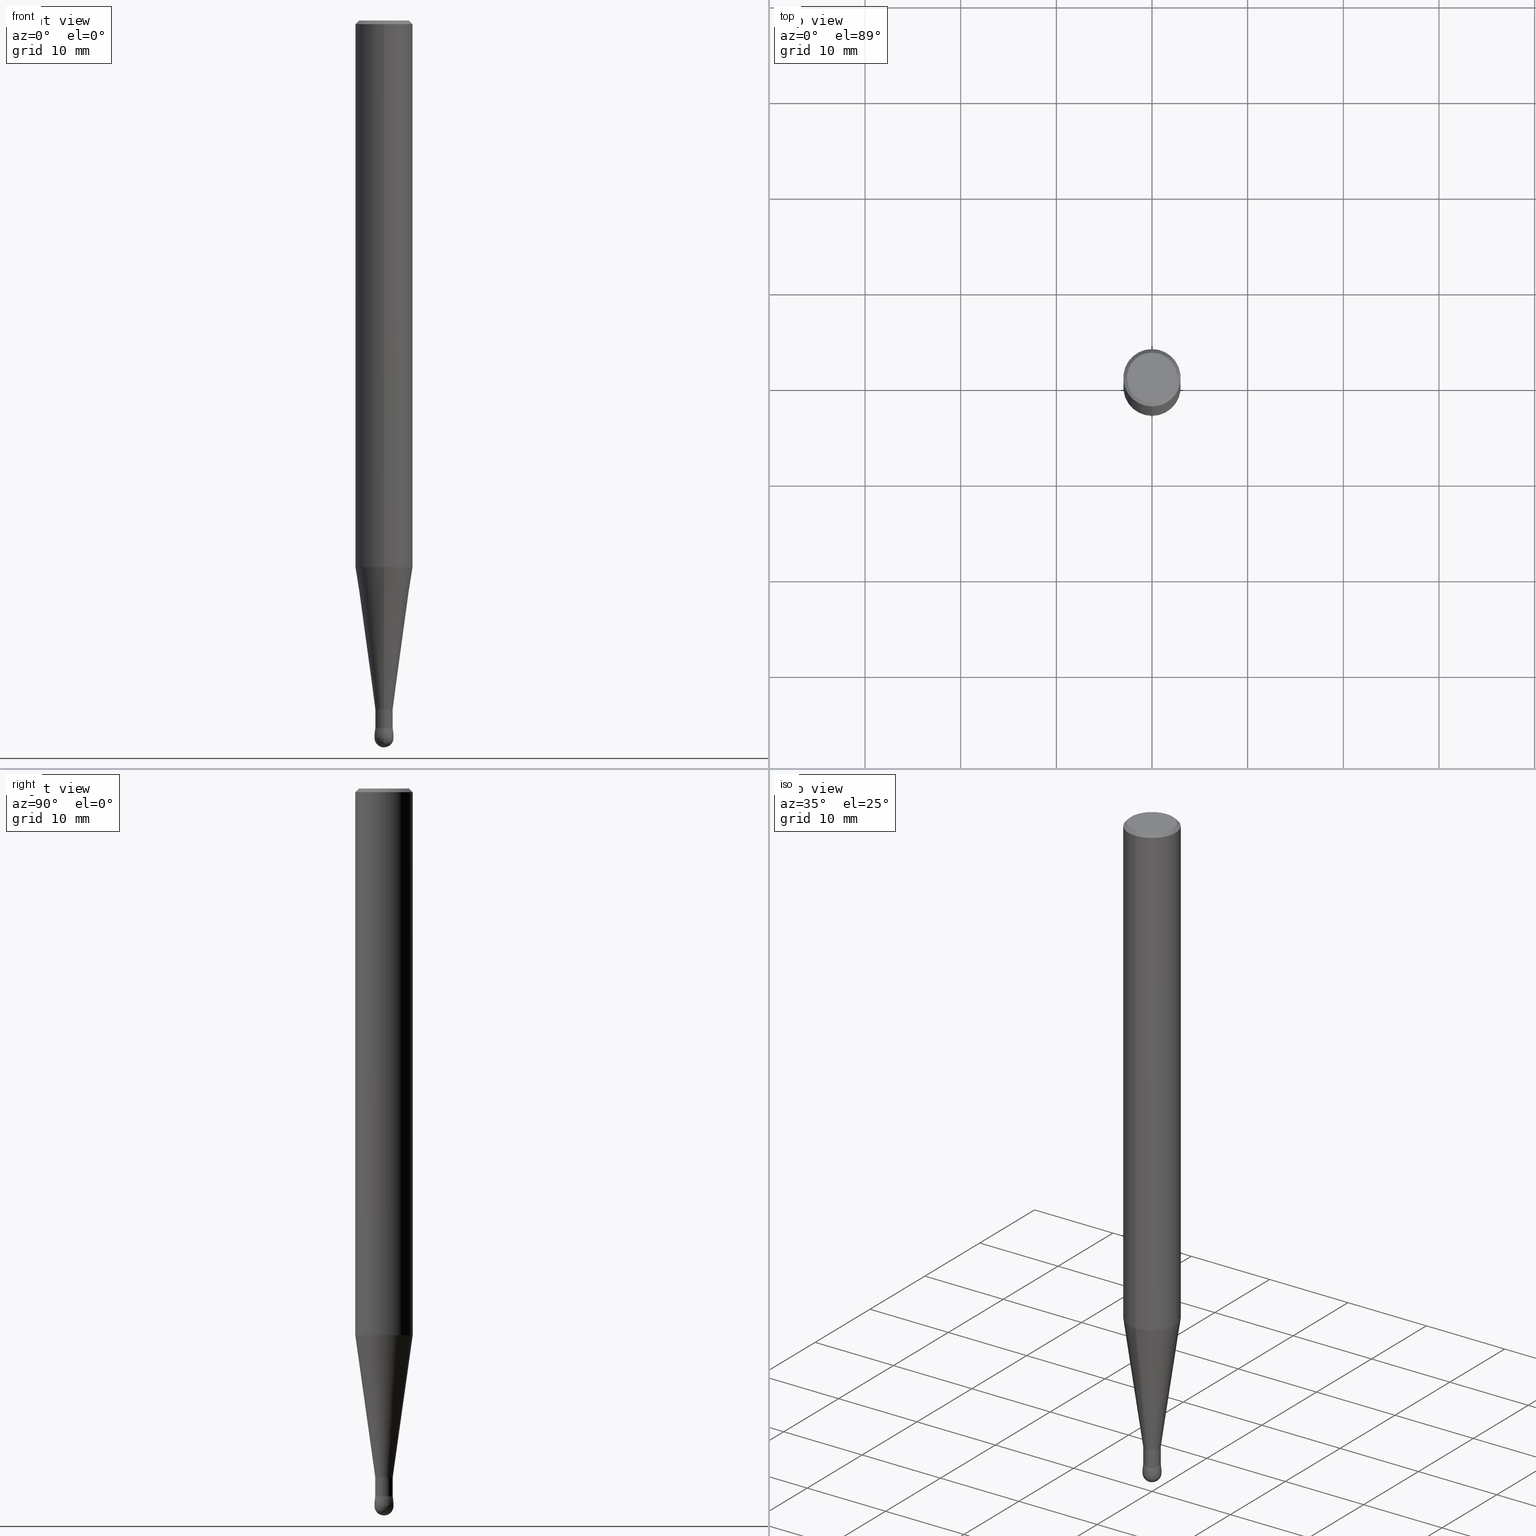
[diagram: canonical four-view strip — front | top / right | iso, engineering-drawing reading convention]
A machine part, canonical four-view strip (front | top / right | iso — engineering-drawing reading convention). The complete STEP part file that produces these views, byte-faithful:
ISO-10303-21;
HEADER;
FILE_DESCRIPTION (( 'STEP AP203' ),
    '1' );
FILE_NAME ('91351.STEP',
    '2024-02-29T19:21:58',
    ( '' ),
    ( '' ),
    'SwSTEP 2.0',
    'SolidWorks 2023',
    '' );
FILE_SCHEMA (( 'CONFIG_CONTROL_DESIGN' ));
ENDSEC;

DATA;
#1 = ADVANCED_FACE ( 'NONE', ( #389 ), #401, .T. ) ;
#2 = CC_DESIGN_SECURITY_CLASSIFICATION ( #487, ( #352 ) ) ;
#3 = ORIENTED_EDGE ( 'NONE', *, *, #247, .T. ) ;
#4 = PERSON_AND_ORGANIZATION ( #181, #492 ) ;
#5 = AXIS2_PLACEMENT_3D ( 'NONE', #192, #258, #79 ) ;
#6 = DATE_AND_TIME ( #345, #59 ) ;
#7 = FACE_OUTER_BOUND ( 'NONE', #119, .T. ) ;
#8 = DIRECTION ( 'NONE',  ( -7.354518733170375608E-29, -3.538557562369774941E-15, 1.000000000000000000 ) ) ;
#9 = LOCAL_TIME ( 14, 21, 58.00000000000000000, #109 ) ;
#10 = DIRECTION ( 'NONE',  ( 2.443734052025374583E-29, -3.493965605535999684E-15, -1.000000000000000000 ) ) ;
#11 = DIRECTION ( 'NONE',  ( 6.982962677686265922E-15, 1.000000000000000000, 0.000000000000000000 ) ) ;
#12 = EDGE_CURVE ( 'NONE', #374, #477, #126, .T. ) ;
#13 = VERTEX_POINT ( 'NONE', #237 ) ;
#15 = CARTESIAN_POINT ( 'NONE',  ( 2.557953848737091158E-16, 0.03599999999999062977, -2.834600000000000009 ) ) ;
#14 = DIRECTION ( 'NONE',  ( 2.443734052025374863E-29, -3.493965605536000078E-15, -1.000000000000000000 ) ) ;
#16 = CYLINDRICAL_SURFACE ( 'NONE', #232, 0.03600000000000054545 ) ;
#17 = ORIENTED_EDGE ( 'NONE', *, *, #262, .F. ) ;
#18 = ORIENTED_EDGE ( 'NONE', *, *, #342, .F. ) ;
#19 = AXIS2_PLACEMENT_3D ( 'NONE', #128, #290, #411 ) ;
#20 = VERTEX_POINT ( 'NONE', #432 ) ;
#21 = ORIENTED_EDGE ( 'NONE', *, *, #188, .T. ) ;
#22 = EDGE_CURVE ( 'NONE', #141, #244, #107, .T. ) ;
#23 = ORIENTED_EDGE ( 'NONE', *, *, #12, .F. ) ;
#24 = VECTOR ( 'NONE', #14, 39.37007874015748143 ) ;
#25 = ADVANCED_BREP_SHAPE_REPRESENTATION ( '91351', ( #286, #459, #5 ), #182 ) ;
#26 = AXIS2_PLACEMENT_3D ( 'NONE', #425, #346, #225 ) ;
#27 = CARTESIAN_POINT ( 'NONE',  ( 7.199434520694515404E-16, 0.1030999999999996503, -3.602278539307603570E-16 ) ) ;
#28 = DIRECTION ( 'NONE',  ( -1.000000000000000000, 6.982962677686265133E-15, -4.883557194083112901E-29 ) ) ;
#29 = ORIENTED_EDGE ( 'NONE', *, *, #180, .F. ) ;
#30 = AXIS2_PLACEMENT_3D ( 'NONE', #70, #332, #490 ) ;
#31 = CARTESIAN_POINT ( 'NONE',  ( 7.119574787170725956E-29, -1.017931939516858039E-14, -2.913399999999999768 ) ) ;
#32 = PRODUCT ( '91351', '91351', '', ( #462 ) ) ;
#33 = VERTEX_POINT ( 'NONE', #228 ) ;
#34 = APPROVAL_DATE_TIME ( #6, #306 ) ;
#35 = AXIS2_PLACEMENT_3D ( 'NONE', #359, #197, #162 ) ;
#36 = CONICAL_SURFACE ( 'NONE', #19, 0.1180999999999996358, 0.7853981633974579379 ) ;
#37 = ADVANCED_FACE ( 'NONE', ( #112 ), #41, .T. ) ;
#38 = DIRECTION ( 'NONE',  ( 6.982962677686264344E-15, 1.000000000000000000, 0.000000000000000000 ) ) ;
#39 = PERSON_AND_ORGANIZATION_ROLE ( 'design_owner' ) ;
#40 =( NAMED_UNIT ( * ) PLANE_ANGLE_UNIT ( ) SI_UNIT ( $, .RADIAN. ) );
#41 = CYLINDRICAL_SURFACE ( 'NONE', #251, 0.1180999999999996358 ) ;
#42 = APPROVAL_STATUS ( 'not_yet_approved' ) ;
#43 = FACE_OUTER_BOUND ( 'NONE', #285, .T. ) ;
#44 = DIRECTION ( 'NONE',  ( 6.982962677686267499E-15, 1.000000000000000000, 0.000000000000000000 ) ) ;
#45 = DIRECTION ( 'NONE',  ( -4.937700262182990032E-15, -0.7071067811891861288, 0.7071067811839089057 ) ) ;
#46 = EDGE_CURVE ( 'NONE', #369, #53, #75, .T. ) ;
#47 = CARTESIAN_POINT ( 'NONE',  ( 3.665601078037989708E-31, -5.240948408303895322E-17, -0.01499999999999970281 ) ) ;
#48 = DIRECTION ( 'NONE',  ( 6.982962677686265922E-15, 1.000000000000000000, 3.538557562369774941E-15 ) ) ;
#49 = FACE_OUTER_BOUND ( 'NONE', #322, .T. ) ;
#50 = DIRECTION ( 'NONE',  ( 6.982962677686265922E-15, 1.000000000000000000, -4.626330217890383536E-15 ) ) ;
#51 = AXIS2_PLACEMENT_3D ( 'NONE', #393, #8, #160 ) ;
#52 = EDGE_LOOP ( 'NONE', ( #23, #243, #366, #165 ) ) ;
#53 = VERTEX_POINT ( 'NONE', #259 ) ;
#54 = DIRECTION ( 'NONE',  ( 2.443734052025374583E-29, -3.493965605535999684E-15, -1.000000000000000000 ) ) ;
#55 = DIRECTION ( 'NONE',  ( -1.000000000000000000, 6.982962677686265922E-15, -4.883557194083112340E-29 ) ) ;
#56 = ORIENTED_EDGE ( 'NONE', *, *, #171, .T. ) ;
#57 = EDGE_CURVE ( 'NONE', #477, #102, #420, .T. ) ;
#58 = DIRECTION ( 'NONE',  ( -7.354518733170375608E-29, -3.538557562369774941E-15, 1.000000000000000000 ) ) ;
#59 = LOCAL_TIME ( 14, 21, 58.00000000000000000, #388 ) ;
#60 = DIRECTION ( 'NONE',  ( -6.982962677686266711E-15, -1.000000000000000000, 0.000000000000000000 ) ) ;
#61 = FACE_OUTER_BOUND ( 'NONE', #275, .T. ) ;
#62 = ORIENTED_EDGE ( 'NONE', *, *, #185, .T. ) ;
#63 = CIRCLE ( 'NONE', #260, 0.1180999999999996358 ) ;
#64 = AXIS2_PLACEMENT_3D ( 'NONE', #118, #233, #44 ) ;
#65 = FACE_OUTER_BOUND ( 'NONE', #137, .T. ) ;
#66 = VECTOR ( 'NONE', #392, 39.37007874015748143 ) ;
#67 = DIRECTION ( 'NONE',  ( -6.982962677686265922E-15, -1.000000000000000000, 3.493965605536000078E-15 ) ) ;
#68 = ORIENTED_EDGE ( 'NONE', *, *, #12, .T. ) ;
#69 = CONICAL_SURFACE ( 'NONE', #234, 0.03590000000000054259, 0.7853981634011832913 ) ;
#70 = CARTESIAN_POINT ( 'NONE',  ( 6.927008543871126381E-29, -9.903994905452345599E-15, -2.834600000000000009 ) ) ;
#71 = AXIS2_PLACEMENT_3D ( 'NONE', #47, #355, #312 ) ;
#72 = ADVANCED_FACE ( 'NONE', ( #266 ), #385, .T. ) ;
#73 = CALENDAR_DATE ( 2024, 29, 2 ) ;
#74 = CONICAL_SURFACE ( 'NONE', #253, 0.03590000000000054259, 0.7853981634011832913 ) ;
#75 = CIRCLE ( 'NONE', #335, 0.03935000000000010711 ) ;
#76 = CARTESIAN_POINT ( 'NONE',  ( 7.119574787170725956E-29, -1.017931939516858039E-14, -2.913399999999999768 ) ) ;
#77 = PERSON_AND_ORGANIZATION ( #181, #492 ) ;
#78 = VECTOR ( 'NONE', #190, 39.37007874015748854 ) ;
#79 = DIRECTION ( 'NONE',  ( 1.000000000000000000, 0.000000000000000000, 0.000000000000000000 ) ) ;
#80 = CARTESIAN_POINT ( 'NONE',  ( 7.119574787170727077E-29, -1.017931939516857881E-14, -2.913399999999999768 ) ) ;
#81 = LINE ( 'NONE', #195, #292 ) ;
#82 = PERSON_AND_ORGANIZATION_ROLE ( 'creator' ) ;
#83 = CONICAL_SURFACE ( 'NONE', #370, 0.03600000000000053157, 0.1396263401595466414 ) ;
#84 = LINE ( 'NONE', #274, #66 ) ;
#85 = AXIS2_PLACEMENT_3D ( 'NONE', #488, #58, #148 ) ;
#86 = AXIS2_PLACEMENT_3D ( 'NONE', #167, #238, #11 ) ;
#87 = CC_DESIGN_PERSON_AND_ORGANIZATION_ASSIGNMENT ( #468, #110, ( #487 ) ) ;
#88 = CARTESIAN_POINT ( 'NONE',  ( 3.665601078037989708E-31, -5.240948408303895322E-17, -0.01499999999999970281 ) ) ;
#89 = CARTESIAN_POINT ( 'NONE',  ( 7.119574787170725956E-29, -1.017931939516858039E-14, -2.913399999999999768 ) ) ;
#90 = DIRECTION ( 'NONE',  ( -4.851104656541010818E-15, -0.7071067811865567876, -0.7071067811865382469 ) ) ;
#91 = DIRECTION ( 'NONE',  ( -6.982962677686267499E-15, -1.000000000000000000, 0.000000000000000000 ) ) ;
#92 = DIRECTION ( 'NONE',  ( 2.443734052025374583E-29, -3.493965605535999684E-15, -1.000000000000000000 ) ) ;
#93 = ORIENTED_EDGE ( 'NONE', *, *, #489, .T. ) ;
#94 = CARTESIAN_POINT ( 'NONE',  ( 2.747795813670312885E-16, 0.03934999999999033715, -2.952750000000000430 ) ) ;
#95 = ADVANCED_FACE ( 'NONE', ( #7 ), #159, .T. ) ;
#96 = CARTESIAN_POINT ( 'NONE',  ( 2.513866563967806755E-16, 0.03599999999999037303, -2.913300000000000445 ) ) ;
#97 = ORIENTED_EDGE ( 'NONE', *, *, #457, .F. ) ;
#98 = ORIENTED_EDGE ( 'NONE', *, *, #291, .T. ) ;
#99 = EDGE_CURVE ( 'NONE', #317, #53, #283, .T. ) ;
#100 = ORIENTED_EDGE ( 'NONE', *, *, #138, .T. ) ;
#101 = ORIENTED_EDGE ( 'NONE', *, *, #132, .T. ) ;
#102 = VERTEX_POINT ( 'NONE', #407 ) ;
#103 = EDGE_CURVE ( 'NONE', #20, #102, #378, .T. ) ;
#104 = CIRCLE ( 'NONE', #373, 0.1030999999999996503 ) ;
#105 = DIRECTION ( 'NONE',  ( 6.982962677686265922E-15, 1.000000000000000000, -4.626330217890383536E-15 ) ) ;
#106 = ADVANCED_FACE ( 'NONE', ( #61 ), #211, .T. ) ;
#107 = CIRCLE ( 'NONE', #64, 0.03600000000000053157 ) ;
#108 = CIRCLE ( 'NONE', #424, 0.03600000000000055933 ) ;
#109 = COORDINATED_UNIVERSAL_TIME_OFFSET ( 5, 0, .BEHIND. ) ;
#110 = PERSON_AND_ORGANIZATION_ROLE ( 'classification_officer' ) ;
#111 = LOCAL_TIME ( 14, 21, 58.00000000000000000, #152 ) ;
#112 = FACE_OUTER_BOUND ( 'NONE', #408, .T. ) ;
#113 = DIRECTION ( 'NONE',  ( 6.982962677686265922E-15, 1.000000000000000000, -3.487819265831422394E-15 ) ) ;
#114 = EDGE_CURVE ( 'NONE', #374, #323, #104, .T. ) ;
#115 = APPROVAL_STATUS ( 'not_yet_approved' ) ;
#116 =( NAMED_UNIT ( * ) SI_UNIT ( $, .STERADIAN. ) SOLID_ANGLE_UNIT ( ) );
#117 = CIRCLE ( 'NONE', #184, 0.1030999999999996503 ) ;
#118 = CARTESIAN_POINT ( 'NONE',  ( 6.927008543871126381E-29, -9.903994905452345599E-15, -2.834600000000000009 ) ) ;
#119 = EDGE_LOOP ( 'NONE', ( #29, #154 ) ) ;
#120 = PERSON_AND_ORGANIZATION_ROLE ( 'creator' ) ;
#121 = COORDINATED_UNIVERSAL_TIME_OFFSET ( 5, 0, .BEHIND. ) ;
#122 = LOCAL_TIME ( 14, 21, 58.00000000000000000, #121 ) ;
#123 = CC_DESIGN_PERSON_AND_ORGANIZATION_ASSIGNMENT ( #460, #120, ( #352 ) ) ;
#124 = DIRECTION ( 'NONE',  ( -6.982962677686265922E-15, -1.000000000000000000, -3.538557562369774941E-15 ) ) ;
#125 = APPLICATION_CONTEXT ( 'configuration controlled 3d designs of mechanical parts and assemblies' ) ;
#126 = LINE ( 'NONE', #429, #344 ) ;
#127 = CLOSED_SHELL ( 'NONE', ( #191, #440, #413, #220, #362, #377, #294, #268, #72, #95, #466, #37 ) ) ;
#128 = CARTESIAN_POINT ( 'NONE',  ( 3.665601078037989708E-31, -5.240948408303895322E-17, -0.01499999999999970281 ) ) ;
#129 = CARTESIAN_POINT ( 'NONE',  ( 5.474731779032196642E-16, 0.03599999999999062977, -2.834600000000000009 ) ) ;
#130 = EDGE_LOOP ( 'NONE', ( #361, #403, #56, #249 ) ) ;
#131 = ORIENTED_EDGE ( 'NONE', *, *, #300, .T. ) ;
#132 = EDGE_CURVE ( 'NONE', #477, #398, #456, .T. ) ;
#134 = FACE_OUTER_BOUND ( 'NONE', #426, .T. ) ;
#133 = FACE_OUTER_BOUND ( 'NONE', #174, .T. ) ;
#135 = CARTESIAN_POINT ( 'NONE',  ( 7.601567486521388413E-29, -9.764273894940413086E-15, -2.952749999999999986 ) ) ;
#136 = ORIENTED_EDGE ( 'NONE', *, *, #319, .T. ) ;
#137 = EDGE_LOOP ( 'NONE', ( #18, #98, #465, #17 ) ) ;
#138 = EDGE_CURVE ( 'NONE', #102, #20, #433, .T. ) ;
#139 = DIRECTION ( 'NONE',  ( 2.443734052025374583E-29, -3.493965605535999684E-15, -1.000000000000000000 ) ) ;
#140 = AXIS2_PLACEMENT_3D ( 'NONE', #439, #10, #320 ) ;
#141 = VERTEX_POINT ( 'NONE', #474 ) ;
#142 = AXIS2_PLACEMENT_3D ( 'NONE', #240, #304, #50 ) ;
#144 = DIRECTION ( 'NONE',  ( -7.354518733170375608E-29, -3.538557562369774941E-15, 1.000000000000000000 ) ) ;
#143 = DIRECTION ( 'NONE',  ( -2.443734052025374583E-29, 3.493965605535999684E-15, 1.000000000000000000 ) ) ;
#145 = VERTEX_POINT ( 'NONE', #204 ) ;
#146 = EDGE_CURVE ( 'NONE', #369, #317, #360, .T. ) ;
#147 = LOCAL_TIME ( 14, 21, 58.00000000000000000, #464 ) ;
#148 = DIRECTION ( 'NONE',  ( -6.982962677686266711E-15, -1.000000000000000000, 0.000000000000000000 ) ) ;
#149 = AXIS2_PLACEMENT_3D ( 'NONE', #178, #161, #485 ) ;
#150 = CIRCLE ( 'NONE', #478, 0.03590000000000054259 ) ;
#151 = AXIS2_PLACEMENT_3D ( 'NONE', #80, #203, #396 ) ;
#152 = COORDINATED_UNIVERSAL_TIME_OFFSET ( 5, 0, .BEHIND. ) ;
#153 = DIRECTION ( 'NONE',  ( -9.718405697420258456E-16, -0.1391731009600622460, 0.9902680687415706950 ) ) ;
#154 = ORIENTED_EDGE ( 'NONE', *, *, #114, .F. ) ;
#155 = PERSON_AND_ORGANIZATION ( #181, #492 ) ;
#156 = VERTEX_POINT ( 'NONE', #96 ) ;
#157 = CALENDAR_DATE ( 2024, 29, 2 ) ;
#158 = APPROVAL_ROLE ( '' ) ;
#159 = PLANE ( 'NONE',  #340 ) ;
#160 = DIRECTION ( 'NONE',  ( -6.982962677686265922E-15, -1.000000000000000000, -3.538557562369774941E-15 ) ) ;
#161 = DIRECTION ( 'NONE',  ( -7.354518733170375608E-29, -3.538557562369774941E-15, 1.000000000000000000 ) ) ;
#162 = DIRECTION ( 'NONE',  ( 6.982962677686265922E-15, 1.000000000000000000, -4.626330217890383536E-15 ) ) ;
#163 = ORIENTED_EDGE ( 'NONE', *, *, #188, .F. ) ;
#164 = AXIS2_PLACEMENT_3D ( 'NONE', #402, #55, #208 ) ;
#165 = ORIENTED_EDGE ( 'NONE', *, *, #132, .F. ) ;
#166 = SPHERICAL_SURFACE ( 'NONE', #461, 0.03935000000000010711 ) ;
#167 = CARTESIAN_POINT ( 'NONE',  ( 7.119330413765524273E-29, -1.017896999860802951E-14, -2.913300000000000445 ) ) ;
#168 = DIRECTION ( 'NONE',  ( 2.443734052025374583E-29, -3.493965605535999684E-15, -1.000000000000000000 ) ) ;
#169 = ORIENTED_EDGE ( 'NONE', *, *, #451, .T. ) ;
#170 = EDGE_LOOP ( 'NONE', ( #62, #454 ) ) ;
#171 = EDGE_CURVE ( 'NONE', #53, #281, #254, .T. ) ;
#172 = DIRECTION ( 'NONE',  ( 5.024295867806827024E-15, 0.7071067811891909027, 0.7071067811839039097 ) ) ;
#173 = ORIENTED_EDGE ( 'NONE', *, *, #247, .F. ) ;
#174 = EDGE_LOOP ( 'NONE', ( #276, #447, #351, #97 ) ) ;
#175 = CARTESIAN_POINT ( 'NONE',  ( 2.513866563967805769E-16, 0.03599999999999036610, -2.913399999999999768 ) ) ;
#176 = CONICAL_SURFACE ( 'NONE', #229, 0.03600000000000053157, 0.1396263401595466414 ) ;
#177 = ORIENTED_EDGE ( 'NONE', *, *, #368, .T. ) ;
#178 = CARTESIAN_POINT ( 'NONE',  ( 7.119574787170727077E-29, -1.017931939516857881E-14, -2.913399999999999768 ) ) ;
#179 = DIRECTION ( 'NONE',  ( 6.982962677686265133E-15, 1.000000000000000000, 0.000000000000000000 ) ) ;
#180 = EDGE_CURVE ( 'NONE', #323, #374, #117, .T. ) ;
#181 = PERSON ( 'UNSPECIFIED', 'UNSPECIFIED', 'UNSPECIFIED', ('UNSPECIFIED'), ('UNSPECIFIED'), ('UNSPECIFIED') ) ;
#182 =( GEOMETRIC_REPRESENTATION_CONTEXT ( 3 ) GLOBAL_UNCERTAINTY_ASSIGNED_CONTEXT ( ( #416 ) ) GLOBAL_UNIT_ASSIGNED_CONTEXT ( ( #437, #40, #116 ) ) REPRESENTATION_CONTEXT ( 'NONE', 'WORKASPACE' ) );
#183 = CIRCLE ( 'NONE', #324, 0.03590000000000054259 ) ;
#184 = AXIS2_PLACEMENT_3D ( 'NONE', #321, #139, #428 ) ;
#185 = EDGE_CURVE ( 'NONE', #281, #13, #328, .T. ) ;
#186 = CC_DESIGN_APPROVAL ( #354, ( #487 ) ) ;
#187 = ORIENTED_EDGE ( 'NONE', *, *, #368, .F. ) ;
#188 = EDGE_CURVE ( 'NONE', #141, #246, #310, .T. ) ;
#189 = DIRECTION ( 'NONE',  ( -1.000000000000000000, 7.105427357601001070E-15, -4.840222362159564660E-29 ) ) ;
#190 = DIRECTION ( 'NONE',  ( 4.937700262164594585E-15, 0.7071067811865517916, -0.7071067811865430208 ) ) ;
#191 = ADVANCED_FACE ( 'NONE', ( #353 ), #434, .T. ) ;
#192 = CARTESIAN_POINT ( 'NONE',  ( 0.000000000000000000, 0.000000000000000000, 0.000000000000000000 ) ) ;
#193 = VECTOR ( 'NONE', #271, 39.37007874015748143 ) ;
#194 = CARTESIAN_POINT ( 'NONE',  ( -8.102248135367440766E-16, -0.1181000000000098221, -2.913399999999998879 ) ) ;
#195 = CARTESIAN_POINT ( 'NONE',  ( -2.513866563966400610E-16, -0.03600000000001044032, -2.834600000000000009 ) ) ;
#196 = DIRECTION ( 'NONE',  ( 9.888843590037927364E-16, 0.1391731009600691849, 0.9902680687415698069 ) ) ;
#197 = DIRECTION ( 'NONE',  ( 2.443734052025374583E-29, -3.493965605535999684E-15, -1.000000000000000000 ) ) ;
#198 = CC_DESIGN_APPROVAL ( #213, ( #352 ) ) ;
#199 = DIRECTION ( 'NONE',  ( 6.982962677686265922E-15, 1.000000000000000000, -4.626330217890383536E-15 ) ) ;
#201 = LINE ( 'NONE', #15, #382 ) ;
#200 = DIRECTION ( 'NONE',  ( -6.982962677686264344E-15, -1.000000000000000000, 0.000000000000000000 ) ) ;
#202 = CIRCLE ( 'NONE', #149, 0.03600000000000053851 ) ;
#203 = DIRECTION ( 'NONE',  ( -7.354518733170375608E-29, -3.538557562369774941E-15, 1.000000000000000000 ) ) ;
#204 = CARTESIAN_POINT ( 'NONE',  ( -2.510375082627538868E-16, -0.03590000000001072195, -2.913399999999999768 ) ) ;
#205 = CC_DESIGN_PERSON_AND_ORGANIZATION_ASSIGNMENT ( #4, #82, ( #343 ) ) ;
#206 = EDGE_LOOP ( 'NONE', ( #486, #441, #315, #100 ) ) ;
#207 = ORIENTED_EDGE ( 'NONE', *, *, #138, .F. ) ;
#208 = DIRECTION ( 'NONE',  ( -6.982962677686266711E-15, -1.000000000000000000, 0.000000000000000000 ) ) ;
#209 = ORIENTED_EDGE ( 'NONE', *, *, #272, .T. ) ;
#210 = ORIENTED_EDGE ( 'NONE', *, *, #185, .F. ) ;
#211 = SPHERICAL_SURFACE ( 'NONE', #311, 0.03935000000000010711 ) ;
#212 = ORIENTED_EDGE ( 'NONE', *, *, #46, .T. ) ;
#213 = APPROVAL ( #42, 'UNSPECIFIED' ) ;
#215 = CARTESIAN_POINT ( 'NONE',  ( -1.374422963500078231E-15, -0.1934328358209081444, -2.952749999999999098 ) ) ;
#214 = LINE ( 'NONE', #175, #24 ) ;
#216 = AXIS2_PLACEMENT_3D ( 'NONE', #326, #144, #60 ) ;
#217 = DIRECTION ( 'NONE',  ( 2.443734052025374583E-29, -3.493965605535999684E-15, -1.000000000000000000 ) ) ;
#218 = CARTESIAN_POINT ( 'NONE',  ( 7.119574787170725956E-29, -1.017931939516858039E-14, -2.913399999999999768 ) ) ;
#219 = APPROVAL_PERSON_ORGANIZATION ( #423, #213, #338 ) ;
#220 = ADVANCED_FACE ( 'NONE', ( #49 ), #16, .T. ) ;
#221 = CALENDAR_DATE ( 2024, 29, 2 ) ;
#222 = DIRECTION ( 'NONE',  ( 2.443734052025374583E-29, -3.493965605535999684E-15, -1.000000000000000000 ) ) ;
#223 = DIRECTION ( 'NONE',  ( 2.443734052025374863E-29, -3.493965605536000078E-15, -1.000000000000000000 ) ) ;
#224 = APPROVAL_DATE_TIME ( #381, #354 ) ;
#225 = DIRECTION ( 'NONE',  ( 6.982962677686265922E-15, 1.000000000000000000, -3.493965605536000078E-15 ) ) ;
#226 = DIRECTION ( 'NONE',  ( 2.443734052025374583E-29, -3.493965605535999684E-15, -1.000000000000000000 ) ) ;
#227 = APPLICATION_PROTOCOL_DEFINITION ( 'international standard', 'config_control_design', 1994, #303 ) ;
#228 = CARTESIAN_POINT ( 'NONE',  ( 2.554401135058310770E-16, 0.03589999999999035629, -2.913399999999999768 ) ) ;
#229 = AXIS2_PLACEMENT_3D ( 'NONE', #410, #245, #287 ) ;
#230 = DATE_AND_TIME ( #157, #9 ) ;
#231 = CARTESIAN_POINT ( 'NONE',  ( -2.469779279197076271E-16, -0.03600000000001072481, -2.913399999999999768 ) ) ;
#232 = AXIS2_PLACEMENT_3D ( 'NONE', #89, #92, #473 ) ;
#233 = DIRECTION ( 'NONE',  ( 2.443734052025374583E-29, -3.493965605535999684E-15, -1.000000000000000000 ) ) ;
#234 = AXIS2_PLACEMENT_3D ( 'NONE', #31, #277, #200 ) ;
#235 = CARTESIAN_POINT ( 'NONE',  ( -2.469779279197095993E-16, -0.03600000000001073869, -2.913300000000000445 ) ) ;
#236 = DIRECTION ( 'NONE',  ( 6.982962677686265922E-15, 1.000000000000000000, -3.493965605535999684E-15 ) ) ;
#237 = CARTESIAN_POINT ( 'NONE',  ( 2.676969756976931810E-16, 0.03599999999999035916, -2.913399999999999768 ) ) ;
#238 = DIRECTION ( 'NONE',  ( 2.443734052025374583E-29, -3.493965605535999684E-15, -1.000000000000000000 ) ) ;
#239 = EDGE_CURVE ( 'NONE', #246, #156, #296, .T. ) ;
#240 = CARTESIAN_POINT ( 'NONE',  ( 5.499447891508879330E-29, -7.862918539128323536E-15, -2.250428145792263912 ) ) ;
#241 = ORIENTED_EDGE ( 'NONE', *, *, #397, .F. ) ;
#242 = CARTESIAN_POINT ( 'NONE',  ( -7.587710785535285755E-16, -0.1030999999999996503, 3.602278539307603570E-16 ) ) ;
#243 = ORIENTED_EDGE ( 'NONE', *, *, #114, .T. ) ;
#244 = VERTEX_POINT ( 'NONE', #129 ) ;
#245 = DIRECTION ( 'NONE',  ( -2.443734052025374583E-29, 3.493965605535999684E-15, 1.000000000000000000 ) ) ;
#246 = VERTEX_POINT ( 'NONE', #235 ) ;
#247 = EDGE_CURVE ( 'NONE', #398, #20, #84, .T. ) ;
#248 = CYLINDRICAL_SURFACE ( 'NONE', #140, 0.03600000000000054545 ) ;
#249 = ORIENTED_EDGE ( 'NONE', *, *, #327, .F. ) ;
#250 = DIRECTION ( 'NONE',  ( 7.354518733170375608E-29, 3.538557562369774941E-15, -1.000000000000000000 ) ) ;
#251 = AXIS2_PLACEMENT_3D ( 'NONE', #76, #387, #199 ) ;
#252 = ADVANCED_FACE ( 'NONE', ( #43 ), #313, .T. ) ;
#253 = AXIS2_PLACEMENT_3D ( 'NONE', #218, #365, #444 ) ;
#254 = CIRCLE ( 'NONE', #164, 0.2327828358208983706 ) ;
#255 = ORIENTED_EDGE ( 'NONE', *, *, #262, .T. ) ;
#256 = DATE_TIME_ROLE ( 'classification_date' ) ;
#257 = CARTESIAN_POINT ( 'NONE',  ( 3.665601078037989708E-31, -5.240948408303895322E-17, -0.01499999999999970281 ) ) ;
#258 = DIRECTION ( 'NONE',  ( 0.000000000000000000, 0.000000000000000000, 1.000000000000000000 ) ) ;
#259 = CARTESIAN_POINT ( 'NONE',  ( -2.795985665215260806E-16, -0.03935000000001014075, -2.952750000000000430 ) ) ;
#260 = AXIS2_PLACEMENT_3D ( 'NONE', #88, #54, #309 ) ;
#261 = CARTESIAN_POINT ( 'NONE',  ( 8.246878922347458960E-16, 0.1180999999999995942, -0.01500000000000011567 ) ) ;
#262 = EDGE_CURVE ( 'NONE', #145, #246, #349, .T. ) ;
#263 = AXIS2_PLACEMENT_3D ( 'NONE', #270, #307, #124 ) ;
#264 = PERSON_AND_ORGANIZATION ( #181, #492 ) ;
#265 = FACE_OUTER_BOUND ( 'NONE', #475, .T. ) ;
#266 = FACE_OUTER_BOUND ( 'NONE', #356, .T. ) ;
#267 = ORIENTED_EDGE ( 'NONE', *, *, #483, .F. ) ;
#268 = ADVANCED_FACE ( 'NONE', ( #265 ), #74, .T. ) ;
#269 = DATE_TIME_ROLE ( 'creation_date' ) ;
#270 = CARTESIAN_POINT ( 'NONE',  ( 7.411621943271856035E-29, -1.003628672390266710E-14, -2.952749999999998654 ) ) ;
#271 = DIRECTION ( 'NONE',  ( 2.443734052025374863E-29, -3.493965605536000078E-15, -1.000000000000000000 ) ) ;
#272 = EDGE_CURVE ( 'NONE', #398, #477, #63, .T. ) ;
#273 = DIRECTION ( 'NONE',  ( 2.443734052025374583E-29, -3.493965605535999684E-15, -1.000000000000000000 ) ) ;
#274 = CARTESIAN_POINT ( 'NONE',  ( 8.246878922348167949E-16, 0.1180999999999894634, -2.913400000000000212 ) ) ;
#275 = EDGE_LOOP ( 'NONE', ( #484, #212, #479 ) ) ;
#276 = ORIENTED_EDGE ( 'NONE', *, *, #451, .F. ) ;
#278 = CARTESIAN_POINT ( 'NONE',  ( 2.550848421379509674E-16, 0.03589999999999035629, -2.913399999999999768 ) ) ;
#277 = DIRECTION ( 'NONE',  ( -2.443734052025374583E-29, 3.493965605535999684E-15, 1.000000000000000000 ) ) ;
#279 = DIRECTION ( 'NONE',  ( 1.000000000000000000, -6.982962677686265922E-15, 4.883557194083112340E-29 ) ) ;
#280 = ORIENTED_EDGE ( 'NONE', *, *, #342, .T. ) ;
#281 = VERTEX_POINT ( 'NONE', #316 ) ;
#282 = EDGE_CURVE ( 'NONE', #244, #20, #201, .T. ) ;
#283 = CIRCLE ( 'NONE', #85, 0.03935000000000038467 ) ;
#284 = ORIENTED_EDGE ( 'NONE', *, *, #171, .F. ) ;
#285 = EDGE_LOOP ( 'NONE', ( #131, #136, #210, #284 ) ) ;
#286 = MANIFOLD_SOLID_BREP ( 'Body-Move/Copy2[1]', #421 ) ;
#287 = DIRECTION ( 'NONE',  ( -6.982962677686267499E-15, -1.000000000000000000, 0.000000000000000000 ) ) ;
#288 = FACE_OUTER_BOUND ( 'NONE', #363, .T. ) ;
#289 = DIRECTION ( 'NONE',  ( 6.982962677686265922E-15, 1.000000000000000000, 0.000000000000000000 ) ) ;
#290 = DIRECTION ( 'NONE',  ( 2.443734052025374583E-29, -3.493965605535999684E-15, -1.000000000000000000 ) ) ;
#291 = EDGE_CURVE ( 'NONE', #33, #156, #476, .T. ) ;
#292 = VECTOR ( 'NONE', #153, 39.37007874015748854 ) ;
#293 = AXIS2_PLACEMENT_3D ( 'NONE', #448, #250, #48 ) ;
#294 = ADVANCED_FACE ( 'NONE', ( #134 ), #248, .T. ) ;
#295 = VECTOR ( 'NONE', #223, 39.37007874015748143 ) ;
#296 = CIRCLE ( 'NONE', #86, 0.03600000000000055933 ) ;
#297 = DATE_AND_TIME ( #73, #111 ) ;
#298 = CONICAL_SURFACE ( 'NONE', #375, 0.1180999999999996358, 0.7853981633974579379 ) ;
#299 = CARTESIAN_POINT ( 'NONE',  ( 7.601567486521388413E-29, -9.764273894940413086E-15, -2.952749999999999986 ) ) ;
#300 = EDGE_CURVE ( 'NONE', #53, #317, #357, .T. ) ;
#301 = ORIENTED_EDGE ( 'NONE', *, *, #22, .T. ) ;
#302 = APPROVAL_DATE_TIME ( #386, #213 ) ;
#303 = APPLICATION_CONTEXT ( 'configuration controlled 3d designs of mechanical parts and assemblies' ) ;
#304 = DIRECTION ( 'NONE',  ( 2.443734052025374583E-29, -3.493965605535999684E-15, -1.000000000000000000 ) ) ;
#305 = CARTESIAN_POINT ( 'NONE',  ( -2.506883601288695368E-16, -0.03590000000001072195, -2.913399999999999768 ) ) ;
#306 = APPROVAL ( #430, 'UNSPECIFIED' ) ;
#307 = DIRECTION ( 'NONE',  ( -7.354518733170375608E-29, -3.538557562369774941E-15, 1.000000000000000000 ) ) ;
#309 = DIRECTION ( 'NONE',  ( 6.982962677686265922E-15, 1.000000000000000000, -3.487819265831422394E-15 ) ) ;
#308 = PLANE ( 'NONE',  #293 ) ;
#310 = LINE ( 'NONE', #231, #193 ) ;
#311 = AXIS2_PLACEMENT_3D ( 'NONE', #372, #28, #179 ) ;
#312 = DIRECTION ( 'NONE',  ( 6.982962677686265922E-15, 1.000000000000000000, -3.487819265831422394E-15 ) ) ;
#313 = TOROIDAL_SURFACE ( 'NONE', #51, -0.1934328358208981247, 0.2327828358208983706 ) ;
#314 = ORIENTED_EDGE ( 'NONE', *, *, #291, .F. ) ;
#315 = ORIENTED_EDGE ( 'NONE', *, *, #457, .T. ) ;
#316 = CARTESIAN_POINT ( 'NONE',  ( -2.513866563966381382E-16, -0.03600000000001071787, -2.913399999999999768 ) ) ;
#317 = VERTEX_POINT ( 'NONE', #94 ) ;
#318 = ORIENTED_EDGE ( 'NONE', *, *, #239, .F. ) ;
#319 = EDGE_CURVE ( 'NONE', #317, #13, #415, .T. ) ;
#320 = DIRECTION ( 'NONE',  ( 6.982962677686265922E-15, 1.000000000000000000, 0.000000000000000000 ) ) ;
#321 = CARTESIAN_POINT ( 'NONE',  ( 0.000000000000000000, 0.000000000000000000, 0.000000000000000000 ) ) ;
#322 = EDGE_LOOP ( 'NONE', ( #169, #21, #241, #187 ) ) ;
#323 = VERTEX_POINT ( 'NONE', #27 ) ;
#324 = AXIS2_PLACEMENT_3D ( 'NONE', #472, #273, #436 ) ;
#326 = CARTESIAN_POINT ( 'NONE',  ( 7.408975099320983747E-29, -1.004007715508932761E-14, -2.952750000000000430 ) ) ;
#325 = CARTESIAN_POINT ( 'NONE',  ( 6.927008543871126381E-29, -9.903994905452345599E-15, -2.834600000000000009 ) ) ;
#327 = EDGE_CURVE ( 'NONE', #13, #281, #202, .T. ) ;
#328 = CIRCLE ( 'NONE', #151, 0.03600000000000053851 ) ;
#329 = ORIENTED_EDGE ( 'NONE', *, *, #57, .F. ) ;
#330 = FACE_OUTER_BOUND ( 'NONE', #206, .T. ) ;
#331 = ORIENTED_EDGE ( 'NONE', *, *, #300, .F. ) ;
#332 = DIRECTION ( 'NONE',  ( 2.443734052025374583E-29, -3.493965605535999684E-15, -1.000000000000000000 ) ) ;
#333 = CARTESIAN_POINT ( 'NONE',  ( 0.000000000000000000, 0.000000000000000000, 0.000000000000000000 ) ) ;
#334 = VECTOR ( 'NONE', #45, 39.37007874015748143 ) ;
#335 = AXIS2_PLACEMENT_3D ( 'NONE', #299, #189, #463 ) ;
#336 = CARTESIAN_POINT ( 'NONE',  ( 7.199434520694515404E-16, 0.1030999999999996503, -3.601004167704755829E-16 ) ) ;
#337 = ORIENTED_EDGE ( 'NONE', *, *, #489, .F. ) ;
#338 = APPROVAL_ROLE ( '' ) ;
#339 = AXIS2_PLACEMENT_3D ( 'NONE', #215, #480, #371 ) ;
#340 = AXIS2_PLACEMENT_3D ( 'NONE', #336, #406, #67 ) ;
#341 = SECURITY_CLASSIFICATION_LEVEL ( 'unclassified' ) ;
#342 = EDGE_CURVE ( 'NONE', #33, #145, #183, .T. ) ;
#343 = PRODUCT_DEFINITION ( 'UNKNOWN', '', #352, #348 ) ;
#344 = VECTOR ( 'NONE', #90, 39.37007874015748143 ) ;
#345 = CALENDAR_DATE ( 2024, 29, 2 ) ;
#346 = DIRECTION ( 'NONE',  ( 2.443734052025374023E-29, -3.493965605536000078E-15, -1.000000000000000000 ) ) ;
#347 = FACE_OUTER_BOUND ( 'NONE', #52, .T. ) ;
#348 = DESIGN_CONTEXT ( 'detailed design', #303, 'design' ) ;
#349 = LINE ( 'NONE', #305, #334 ) ;
#350 = CC_DESIGN_PERSON_AND_ORGANIZATION_ASSIGNMENT ( #155, #494, ( #352 ) ) ;
#351 = ORIENTED_EDGE ( 'NONE', *, *, #103, .T. ) ;
#352 = PRODUCT_DEFINITION_FORMATION_WITH_SPECIFIED_SOURCE ( 'ANY', '', #32, .NOT_KNOWN. ) ;
#353 = FACE_OUTER_BOUND ( 'NONE', #481, .T. ) ;
#354 = APPROVAL ( #115, 'UNSPECIFIED' ) ;
#355 = DIRECTION ( 'NONE',  ( 2.443734052025374583E-29, -3.493965605535999684E-15, -1.000000000000000000 ) ) ;
#356 = EDGE_LOOP ( 'NONE', ( #93, #280 ) ) ;
#357 = CIRCLE ( 'NONE', #216, 0.03935000000000038467 ) ;
#358 = FACE_OUTER_BOUND ( 'NONE', #493, .T. ) ;
#359 = CARTESIAN_POINT ( 'NONE',  ( 7.119574787170725956E-29, -1.017931939516858039E-14, -2.913399999999999768 ) ) ;
#360 = CIRCLE ( 'NONE', #383, 0.03935000000000010711 ) ;
#361 = ORIENTED_EDGE ( 'NONE', *, *, #319, .F. ) ;
#362 = ADVANCED_FACE ( 'NONE', ( #133 ), #176, .T. ) ;
#363 = EDGE_LOOP ( 'NONE', ( #450, #68, #446, #267 ) ) ;
#364 = DIRECTION ( 'NONE',  ( 6.982962677686265133E-15, 1.000000000000000000, 0.000000000000000000 ) ) ;
#365 = DIRECTION ( 'NONE',  ( -2.443734052025374583E-29, 3.493965605535999684E-15, 1.000000000000000000 ) ) ;
#366 = ORIENTED_EDGE ( 'NONE', *, *, #483, .T. ) ;
#367 = ORIENTED_EDGE ( 'NONE', *, *, #57, .T. ) ;
#368 = EDGE_CURVE ( 'NONE', #244, #156, #214, .T. ) ;
#369 = VERTEX_POINT ( 'NONE', #482 ) ;
#370 = AXIS2_PLACEMENT_3D ( 'NONE', #325, #143, #91 ) ;
#371 = DIRECTION ( 'NONE',  ( 7.105427357601001070E-15, 1.000000000000000000, 0.000000000000000000 ) ) ;
#372 = CARTESIAN_POINT ( 'NONE',  ( 7.601567486521388413E-29, -9.764273894940413086E-15, -2.952749999999999986 ) ) ;
#373 = AXIS2_PLACEMENT_3D ( 'NONE', #333, #168, #236 ) ;
#374 = VERTEX_POINT ( 'NONE', #242 ) ;
#375 = AXIS2_PLACEMENT_3D ( 'NONE', #257, #222, #113 ) ;
#376 = CARTESIAN_POINT ( 'NONE',  ( 5.499447891508879330E-29, -7.862918539128323536E-15, -2.250428145792263912 ) ) ;
#377 = ADVANCED_FACE ( 'NONE', ( #330 ), #83, .T. ) ;
#378 = CIRCLE ( 'NONE', #445, 0.1180999999999996358 ) ;
#379 = CC_DESIGN_DATE_AND_TIME_ASSIGNMENT ( #297, #256, ( #487 ) ) ;
#380 = DIMENSIONAL_EXPONENTS ( 1.000000000000000000, 0.000000000000000000, 0.000000000000000000, 0.000000000000000000, 0.000000000000000000, 0.000000000000000000, 0.000000000000000000 ) ;
#381 = DATE_AND_TIME ( #221, #122 ) ;
#382 = VECTOR ( 'NONE', #196, 39.37007874015748143 ) ;
#383 = AXIS2_PLACEMENT_3D ( 'NONE', #135, #279, #469 ) ;
#384 = LINE ( 'NONE', #261, #78 ) ;
#385 = PLANE ( 'NONE',  #26 ) ;
#386 = DATE_AND_TIME ( #467, #147 ) ;
#387 = DIRECTION ( 'NONE',  ( 2.443734052025374583E-29, -3.493965605535999684E-15, -1.000000000000000000 ) ) ;
#388 = COORDINATED_UNIVERSAL_TIME_OFFSET ( 5, 0, .BEHIND. ) ;
#389 = FACE_OUTER_BOUND ( 'NONE', #130, .T. ) ;
#390 = ADVANCED_FACE ( 'NONE', ( #400 ), #308, .F. ) ;
#391 = PERSON_AND_ORGANIZATION ( #181, #492 ) ;
#392 = DIRECTION ( 'NONE',  ( 2.443734052025374863E-29, -3.493965605536000078E-15, -1.000000000000000000 ) ) ;
#393 = CARTESIAN_POINT ( 'NONE',  ( 7.411621943271856035E-29, -1.003628672390266710E-14, -2.952749999999998654 ) ) ;
#394 = APPROVAL_PERSON_ORGANIZATION ( #77, #354, #417 ) ;
#395 = CARTESIAN_POINT ( 'NONE',  ( 7.119330413765524273E-29, -1.017896999860802951E-14, -2.913300000000000445 ) ) ;
#396 = DIRECTION ( 'NONE',  ( -6.982962677686265922E-15, -1.000000000000000000, 0.000000000000000000 ) ) ;
#397 = EDGE_CURVE ( 'NONE', #156, #246, #108, .T. ) ;
#398 = VERTEX_POINT ( 'NONE', #452 ) ;
#399 = ORIENTED_EDGE ( 'NONE', *, *, #103, .F. ) ;
#400 = FACE_OUTER_BOUND ( 'NONE', #170, .T. ) ;
#401 = TOROIDAL_SURFACE ( 'NONE', #263, -0.1934328358208981247, 0.2327828358208983706 ) ;
#402 = CARTESIAN_POINT ( 'NONE',  ( 1.350734273176420597E-15, 0.1934328358208880771, -2.952749999999998209 ) ) ;
#403 = ORIENTED_EDGE ( 'NONE', *, *, #99, .T. ) ;
#404 = CIRCLE ( 'NONE', #30, 0.03600000000000053157 ) ;
#405 =( LENGTH_UNIT ( ) NAMED_UNIT ( * ) SI_UNIT ( $, .METRE. ) );
#406 = DIRECTION ( 'NONE',  ( -2.443734052025374023E-29, 3.493965605536000078E-15, 1.000000000000000000 ) ) ;
#407 = CARTESIAN_POINT ( 'NONE',  ( -8.246878922346906758E-16, -0.1181000000000075323, -2.250428145792263468 ) ) ;
#408 = EDGE_LOOP ( 'NONE', ( #329, #101, #3, #207 ) ) ;
#409 = CC_DESIGN_PERSON_AND_ORGANIZATION_ASSIGNMENT ( #264, #39, ( #32 ) ) ;
#410 = CARTESIAN_POINT ( 'NONE',  ( 6.927008543871126381E-29, -9.903994905452345599E-15, -2.834600000000000009 ) ) ;
#411 = DIRECTION ( 'NONE',  ( 6.982962677686265922E-15, 1.000000000000000000, -3.487819265831422394E-15 ) ) ;
#412 = APPROVAL_PERSON_ORGANIZATION ( #391, #306, #158 ) ;
#413 = ADVANCED_FACE ( 'NONE', ( #65 ), #69, .T. ) ;
#414 = ORIENTED_EDGE ( 'NONE', *, *, #46, .F. ) ;
#415 = CIRCLE ( 'NONE', #339, 0.2327828358208983706 ) ;
#416 = UNCERTAINTY_MEASURE_WITH_UNIT (LENGTH_MEASURE( 1.000000000000000082E-05 ), #437, 'distance_accuracy_value', 'NONE');
#417 = APPROVAL_ROLE ( '' ) ;
#418 = CARTESIAN_POINT ( 'NONE',  ( -8.102248135368149755E-16, -0.1180999999999996913, -0.01499999999999929168 ) ) ;
#419 = SHAPE_DEFINITION_REPRESENTATION ( #458, #25 ) ;
#420 = LINE ( 'NONE', #194, #295 ) ;
#421 = CLOSED_SHELL ( 'NONE', ( #252, #106, #435, #1, #390 ) ) ;
#422 = CARTESIAN_POINT ( 'NONE',  ( 7.119574787170725956E-29, -1.017931939516858039E-14, -2.913399999999999768 ) ) ;
#423 = PERSON_AND_ORGANIZATION ( #181, #492 ) ;
#424 = AXIS2_PLACEMENT_3D ( 'NONE', #395, #217, #289 ) ;
#425 = CARTESIAN_POINT ( 'NONE',  ( 2.506883601290118769E-16, 0.03589999999999035629, -2.913399999999999768 ) ) ;
#426 = EDGE_LOOP ( 'NONE', ( #163, #301, #177, #318 ) ) ;
#427 = APPLICATION_PROTOCOL_DEFINITION ( 'international standard', 'config_control_design', 1994, #125 ) ;
#428 = DIRECTION ( 'NONE',  ( 6.982962677686265922E-15, 1.000000000000000000, -3.493965605535999684E-15 ) ) ;
#429 = CARTESIAN_POINT ( 'NONE',  ( -8.102248135368149755E-16, -0.1180999999999996913, -0.01499999999999929168 ) ) ;
#430 = APPROVAL_STATUS ( 'not_yet_approved' ) ;
#431 = VECTOR ( 'NONE', #172, 39.37007874015748854 ) ;
#432 = CARTESIAN_POINT ( 'NONE',  ( 8.391509709327303605E-16, 0.1180999999999917532, -2.250428145792263912 ) ) ;
#433 = CIRCLE ( 'NONE', #142, 0.1180999999999996358 ) ;
#434 = CYLINDRICAL_SURFACE ( 'NONE', #35, 0.1180999999999996358 ) ;
#435 = ADVANCED_FACE ( 'NONE', ( #358 ), #166, .T. ) ;
#436 = DIRECTION ( 'NONE',  ( 6.982962677686264344E-15, 1.000000000000000000, 0.000000000000000000 ) ) ;
#437 =( CONVERSION_BASED_UNIT ( 'INCH', #470 ) LENGTH_UNIT ( ) NAMED_UNIT ( #380 ) );
#438 = ORIENTED_EDGE ( 'NONE', *, *, #239, .T. ) ;
#439 = CARTESIAN_POINT ( 'NONE',  ( 7.119574787170725956E-29, -1.017931939516858039E-14, -2.913399999999999768 ) ) ;
#440 = ADVANCED_FACE ( 'NONE', ( #288 ), #36, .T. ) ;
#441 = ORIENTED_EDGE ( 'NONE', *, *, #22, .F. ) ;
#442 = ORIENTED_EDGE ( 'NONE', *, *, #146, .T. ) ;
#443 = CARTESIAN_POINT ( 'NONE',  ( 7.601567486521388413E-29, -9.764273894940413086E-15, -2.952749999999999986 ) ) ;
#444 = DIRECTION ( 'NONE',  ( -6.982962677686264344E-15, -1.000000000000000000, 0.000000000000000000 ) ) ;
#445 = AXIS2_PLACEMENT_3D ( 'NONE', #376, #449, #105 ) ;
#446 = ORIENTED_EDGE ( 'NONE', *, *, #272, .F. ) ;
#447 = ORIENTED_EDGE ( 'NONE', *, *, #282, .T. ) ;
#448 = CARTESIAN_POINT ( 'NONE',  ( 7.124628819939776708E-29, -1.017208173258561931E-14, -2.913399999999999768 ) ) ;
#449 = DIRECTION ( 'NONE',  ( 2.443734052025374583E-29, -3.493965605535999684E-15, -1.000000000000000000 ) ) ;
#450 = ORIENTED_EDGE ( 'NONE', *, *, #180, .T. ) ;
#451 = EDGE_CURVE ( 'NONE', #244, #141, #404, .T. ) ;
#452 = CARTESIAN_POINT ( 'NONE',  ( 8.246878922347458960E-16, 0.1180999999999995942, -0.01500000000000011567 ) ) ;
#453 = CC_DESIGN_APPROVAL ( #306, ( #343 ) ) ;
#454 = ORIENTED_EDGE ( 'NONE', *, *, #327, .T. ) ;
#455 = PRODUCT_RELATED_PRODUCT_CATEGORY ( 'detail', '', ( #32 ) ) ;
#456 = CIRCLE ( 'NONE', #71, 0.1180999999999996358 ) ;
#457 = EDGE_CURVE ( 'NONE', #141, #102, #81, .T. ) ;
#458 = PRODUCT_DEFINITION_SHAPE ( 'NONE', 'NONE',  #343 ) ;
#459 = MANIFOLD_SOLID_BREP ( 'Body-Move/Copy2[2]', #127 ) ;
#460 = PERSON_AND_ORGANIZATION ( #181, #492 ) ;
#461 = AXIS2_PLACEMENT_3D ( 'NONE', #443, #471, #364 ) ;
#462 = MECHANICAL_CONTEXT ( 'NONE', #125, 'mechanical' ) ;
#463 = DIRECTION ( 'NONE',  ( -7.105427357600999492E-15, -1.000000000000000000, 0.000000000000000000 ) ) ;
#464 = COORDINATED_UNIVERSAL_TIME_OFFSET ( 5, 0, .BEHIND. ) ;
#465 = ORIENTED_EDGE ( 'NONE', *, *, #397, .T. ) ;
#466 = ADVANCED_FACE ( 'NONE', ( #347 ), #298, .T. ) ;
#467 = CALENDAR_DATE ( 2024, 29, 2 ) ;
#468 = PERSON_AND_ORGANIZATION ( #181, #492 ) ;
#469 = DIRECTION ( 'NONE',  ( 6.982962677686264344E-15, 1.000000000000000000, 0.000000000000000000 ) ) ;
#470 = LENGTH_MEASURE_WITH_UNIT ( LENGTH_MEASURE( 0.02539999999999999897 ), #405 );
#471 = DIRECTION ( 'NONE',  ( -1.000000000000000000, 6.982962677686265133E-15, -4.883557194083112901E-29 ) ) ;
#472 = CARTESIAN_POINT ( 'NONE',  ( 7.119574787170725956E-29, -1.017931939516858039E-14, -2.913399999999999768 ) ) ;
#473 = DIRECTION ( 'NONE',  ( 6.982962677686265922E-15, 1.000000000000000000, 0.000000000000000000 ) ) ;
#474 = CARTESIAN_POINT ( 'NONE',  ( -5.380372743156651958E-16, -0.03600000000001044032, -2.834600000000000009 ) ) ;
#475 = EDGE_LOOP ( 'NONE', ( #314, #337, #255, #438 ) ) ;
#476 = LINE ( 'NONE', #278, #431 ) ;
#477 = VERTEX_POINT ( 'NONE', #418 ) ;
#478 = AXIS2_PLACEMENT_3D ( 'NONE', #422, #226, #38 ) ;
#479 = ORIENTED_EDGE ( 'NONE', *, *, #99, .F. ) ;
#480 = DIRECTION ( 'NONE',  ( 1.000000000000000000, -7.105427357601001070E-15, 4.840222362159564660E-29 ) ) ;
#481 = EDGE_LOOP ( 'NONE', ( #209, #367, #399, #173 ) ) ;
#482 = CARTESIAN_POINT ( 'NONE',  ( 7.892650338345602808E-29, -9.622622162283838073E-15, -2.992100000000000204 ) ) ;
#483 = EDGE_CURVE ( 'NONE', #323, #398, #384, .T. ) ;
#484 = ORIENTED_EDGE ( 'NONE', *, *, #146, .F. ) ;
#485 = DIRECTION ( 'NONE',  ( -6.982962677686265922E-15, -1.000000000000000000, 0.000000000000000000 ) ) ;
#486 = ORIENTED_EDGE ( 'NONE', *, *, #282, .F. ) ;
#487 = SECURITY_CLASSIFICATION ( '', '', #341 ) ;
#488 = CARTESIAN_POINT ( 'NONE',  ( 7.408975099320983747E-29, -1.004007715508932761E-14, -2.952750000000000430 ) ) ;
#489 = EDGE_CURVE ( 'NONE', #145, #33, #150, .T. ) ;
#490 = DIRECTION ( 'NONE',  ( 6.982962677686267499E-15, 1.000000000000000000, 0.000000000000000000 ) ) ;
#491 = CC_DESIGN_DATE_AND_TIME_ASSIGNMENT ( #230, #269, ( #343 ) ) ;
#492 = ORGANIZATION ( 'UNSPECIFIED', 'UNSPECIFIED', '' ) ;
#493 = EDGE_LOOP ( 'NONE', ( #414, #442, #331 ) ) ;
#494 = PERSON_AND_ORGANIZATION_ROLE ( 'design_supplier' ) ;
ENDSEC;
END-ISO-10303-21;
